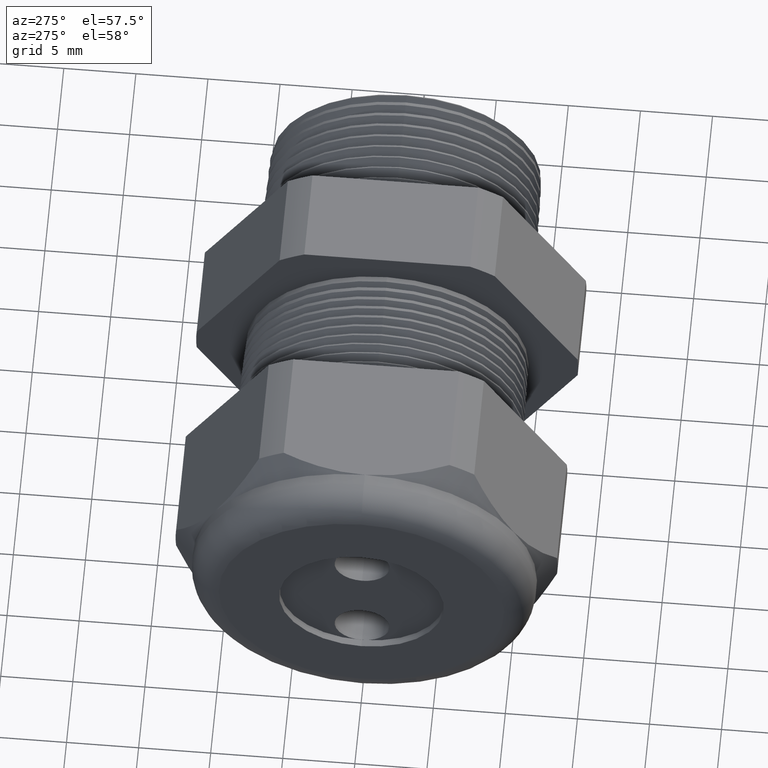
[diagram: clean part render]
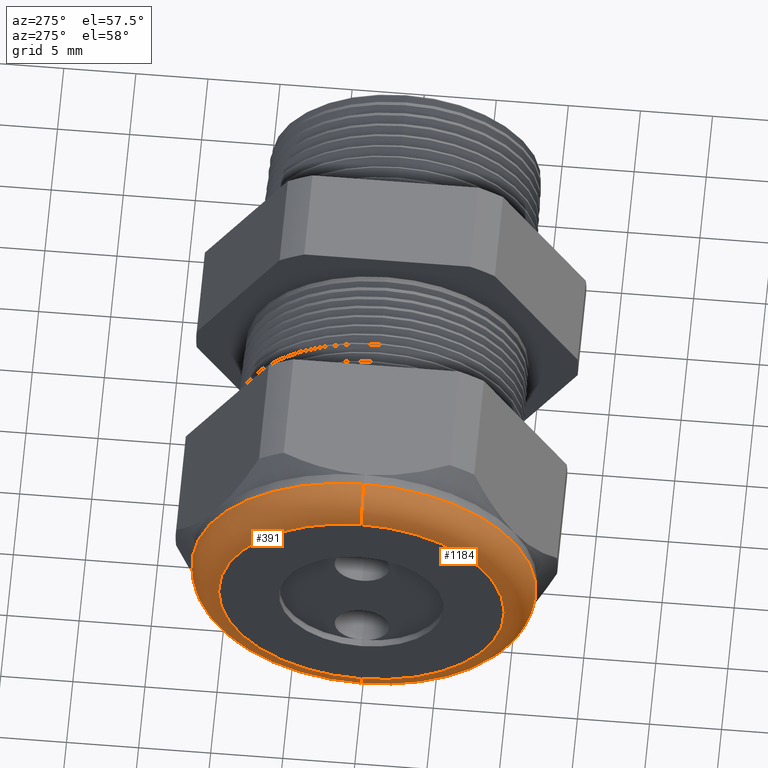
[diagram: same view with one multi-face feature highlighted, each face labeled with its STEP entity id]
A machine part, auxiliary view. The highlighted faces form ONE feature: a constant-radius fillet chain: 2 tangent blend faces with common blend radius 2.032 mm. The faces share edges in the B-rep.
Their STEP definitions:
[1] entity #1184 (Torus):
#41 = EDGE_CURVE ( 'NONE', #362, #361, #1577, .T. ) ;
#360 = EDGE_CURVE ( 'NONE', #361, #573, #2205, .T. ) ;
#361 = VERTEX_POINT ( 'NONE', #2200 ) ;
#362 = VERTEX_POINT ( 'NONE', #2199 ) ;
#410 = VERTEX_POINT ( 'NONE', #2286 ) ;
#413 = EDGE_CURVE ( 'NONE', #362, #410, #2278, .T. ) ;
#573 = VERTEX_POINT ( 'NONE', #2643 ) ;
#987 = EDGE_CURVE ( 'NONE', #573, #410, #3396, .T. ) ;
#1166 = ORIENTED_EDGE ( 'NONE', *, *, #987, .F. ) ;
#1184 = ADVANCED_FACE ( 'NONE', ( #3669 ), #3668, .T. ) ;
#1185 = EDGE_LOOP ( 'NONE', ( #1186, #1187, #1188, #1166 ) ) ;
#1186 = ORIENTED_EDGE ( 'NONE', *, *, #360, .F. ) ;
#1187 = ORIENTED_EDGE ( 'NONE', *, *, #41, .F. ) ;
#1188 = ORIENTED_EDGE ( 'NONE', *, *, #413, .T. ) ;
#1573 = DIRECTION ( 'NONE',  ( 0.0000000000000000000, 0.0000000000000000000, 1.000000000000000000 ) ) ;
#1574 = DIRECTION ( 'NONE',  ( 1.000000000000000000, 0.0000000000000000000, 0.0000000000000000000 ) ) ;
#1575 = CARTESIAN_POINT ( 'NONE',  ( -1.290000000000000300, 0.0000000000000000000, 0.0000000000000000000 ) ) ;
#1576 = AXIS2_PLACEMENT_3D ( 'NONE', #1575, #1574, #1573 ) ;
#1577 = CIRCLE ( 'NONE', #1576, 0.4699999999999999200 ) ;
#1782 = DIRECTION ( 'NONE',  ( 0.0000000000000000000, -1.000000000000000000, 0.0000000000000000000 ) ) ;
#1783 = CARTESIAN_POINT ( 'NONE',  ( -1.290000000000000300, 0.0000000000000000000, 0.3899999999999999600 ) ) ;
#2026 = DIRECTION ( 'NONE',  ( 0.0000000000000000000, 0.0000000000000000000, -1.000000000000000000 ) ) ;
#2199 = CARTESIAN_POINT ( 'NONE',  ( -1.290000000000000300, 5.755839955992558400E-017, 0.4699999999999999200 ) ) ;
#2200 = CARTESIAN_POINT ( 'NONE',  ( -1.290000000000000300, 0.0000000000000000000, -0.4699999999999999200 ) ) ;
#2201 = DIRECTION ( 'NONE',  ( 0.0000000000000000000, -1.224646799147353900E-016, 1.000000000000000000 ) ) ;
#2202 = DIRECTION ( 'NONE',  ( 0.0000000000000000000, 1.000000000000000000, 1.224646799147353200E-016 ) ) ;
#2203 = CARTESIAN_POINT ( 'NONE',  ( -1.290000000000000300, 4.776122516674676800E-017, -0.3899999999999999600 ) ) ;
#2204 = AXIS2_PLACEMENT_3D ( 'NONE', #2203, #2202, #2201 ) ;
#2205 = CIRCLE ( 'NONE', #2204, 0.07999999999999996000 ) ;
#2277 = AXIS2_PLACEMENT_3D ( 'NONE', #1783, #1782, #2026 ) ;
#2278 = CIRCLE ( 'NONE', #2277, 0.07999999999999996000 ) ;
#2286 = CARTESIAN_POINT ( 'NONE',  ( -1.370000000000000100, 0.0000000000000000000, 0.3899999999999999600 ) ) ;
#2643 = CARTESIAN_POINT ( 'NONE',  ( -1.370000000000000100, 5.265981236333617600E-017, -0.3899999999999999600 ) ) ;
#3392 = DIRECTION ( 'NONE',  ( 0.0000000000000000000, 0.0000000000000000000, 1.000000000000000000 ) ) ;
#3393 = DIRECTION ( 'NONE',  ( -1.000000000000000000, 0.0000000000000000000, 0.0000000000000000000 ) ) ;
#3394 = CARTESIAN_POINT ( 'NONE',  ( -1.370000000000000100, 0.0000000000000000000, 0.0000000000000000000 ) ) ;
#3395 = AXIS2_PLACEMENT_3D ( 'NONE', #3394, #3393, #3392 ) ;
#3396 = CIRCLE ( 'NONE', #3395, 0.3899999999999999600 ) ;
#3668 = TOROIDAL_SURFACE ( 'NONE', #3732, 0.3899999999999999600, 0.08000000000000000200 ) ;
#3669 = FACE_OUTER_BOUND ( 'NONE', #1185, .T. ) ;
#3729 = DIRECTION ( 'NONE',  ( 0.0000000000000000000, 0.0000000000000000000, 1.000000000000000000 ) ) ;
#3730 = DIRECTION ( 'NONE',  ( -1.000000000000000000, 0.0000000000000000000, 0.0000000000000000000 ) ) ;
#3731 = CARTESIAN_POINT ( 'NONE',  ( -1.290000000000000300, 0.0000000000000000000, 0.0000000000000000000 ) ) ;
#3732 = AXIS2_PLACEMENT_3D ( 'NONE', #3731, #3730, #3729 ) ;
[2] entity #391 (Torus):
#360 = EDGE_CURVE ( 'NONE', #361, #573, #2205, .T. ) ;
#361 = VERTEX_POINT ( 'NONE', #2200 ) ;
#362 = VERTEX_POINT ( 'NONE', #2199 ) ;
#364 = ORIENTED_EDGE ( 'NONE', *, *, #360, .T. ) ;
#388 = EDGE_LOOP ( 'NONE', ( #389, #364, #417, #412 ) ) ;
#389 = ORIENTED_EDGE ( 'NONE', *, *, #390, .F. ) ;
#390 = EDGE_CURVE ( 'NONE', #361, #362, #2269, .T. ) ;
#391 = ADVANCED_FACE ( 'NONE', ( #2264 ), #2263, .T. ) ;
#409 = EDGE_CURVE ( 'NONE', #410, #573, #2291, .T. ) ;
#410 = VERTEX_POINT ( 'NONE', #2286 ) ;
#412 = ORIENTED_EDGE ( 'NONE', *, *, #413, .F. ) ;
#413 = EDGE_CURVE ( 'NONE', #362, #410, #2278, .T. ) ;
#417 = ORIENTED_EDGE ( 'NONE', *, *, #409, .F. ) ;
#573 = VERTEX_POINT ( 'NONE', #2643 ) ;
#1782 = DIRECTION ( 'NONE',  ( 0.0000000000000000000, -1.000000000000000000, 0.0000000000000000000 ) ) ;
#1783 = CARTESIAN_POINT ( 'NONE',  ( -1.290000000000000300, 0.0000000000000000000, 0.3899999999999999600 ) ) ;
#2026 = DIRECTION ( 'NONE',  ( 0.0000000000000000000, 0.0000000000000000000, -1.000000000000000000 ) ) ;
#2199 = CARTESIAN_POINT ( 'NONE',  ( -1.290000000000000300, 5.755839955992558400E-017, 0.4699999999999999200 ) ) ;
#2200 = CARTESIAN_POINT ( 'NONE',  ( -1.290000000000000300, 0.0000000000000000000, -0.4699999999999999200 ) ) ;
#2201 = DIRECTION ( 'NONE',  ( 0.0000000000000000000, -1.224646799147353900E-016, 1.000000000000000000 ) ) ;
#2202 = DIRECTION ( 'NONE',  ( 0.0000000000000000000, 1.000000000000000000, 1.224646799147353200E-016 ) ) ;
#2203 = CARTESIAN_POINT ( 'NONE',  ( -1.290000000000000300, 4.776122516674676800E-017, -0.3899999999999999600 ) ) ;
#2204 = AXIS2_PLACEMENT_3D ( 'NONE', #2203, #2202, #2201 ) ;
#2205 = CIRCLE ( 'NONE', #2204, 0.07999999999999996000 ) ;
#2259 = DIRECTION ( 'NONE',  ( 0.0000000000000000000, 0.0000000000000000000, 1.000000000000000000 ) ) ;
#2260 = DIRECTION ( 'NONE',  ( -1.000000000000000000, 0.0000000000000000000, 0.0000000000000000000 ) ) ;
#2261 = CARTESIAN_POINT ( 'NONE',  ( -1.290000000000000300, 0.0000000000000000000, 0.0000000000000000000 ) ) ;
#2262 = AXIS2_PLACEMENT_3D ( 'NONE', #2261, #2260, #2259 ) ;
#2263 = TOROIDAL_SURFACE ( 'NONE', #2262, 0.3899999999999999600, 0.08000000000000000200 ) ;
#2264 = FACE_OUTER_BOUND ( 'NONE', #388, .T. ) ;
#2265 = DIRECTION ( 'NONE',  ( 0.0000000000000000000, 0.0000000000000000000, 1.000000000000000000 ) ) ;
#2266 = DIRECTION ( 'NONE',  ( 1.000000000000000000, 0.0000000000000000000, 0.0000000000000000000 ) ) ;
#2267 = CARTESIAN_POINT ( 'NONE',  ( -1.290000000000000300, 0.0000000000000000000, 0.0000000000000000000 ) ) ;
#2268 = AXIS2_PLACEMENT_3D ( 'NONE', #2267, #2266, #2265 ) ;
#2269 = CIRCLE ( 'NONE', #2268, 0.4699999999999999200 ) ;
#2277 = AXIS2_PLACEMENT_3D ( 'NONE', #1783, #1782, #2026 ) ;
#2278 = CIRCLE ( 'NONE', #2277, 0.07999999999999996000 ) ;
#2286 = CARTESIAN_POINT ( 'NONE',  ( -1.370000000000000100, 0.0000000000000000000, 0.3899999999999999600 ) ) ;
#2287 = DIRECTION ( 'NONE',  ( 0.0000000000000000000, 0.0000000000000000000, 1.000000000000000000 ) ) ;
#2288 = DIRECTION ( 'NONE',  ( -1.000000000000000000, 0.0000000000000000000, 0.0000000000000000000 ) ) ;
#2289 = CARTESIAN_POINT ( 'NONE',  ( -1.370000000000000100, 0.0000000000000000000, 0.0000000000000000000 ) ) ;
#2290 = AXIS2_PLACEMENT_3D ( 'NONE', #2289, #2288, #2287 ) ;
#2291 = CIRCLE ( 'NONE', #2290, 0.3899999999999999600 ) ;
#2643 = CARTESIAN_POINT ( 'NONE',  ( -1.370000000000000100, 5.265981236333617600E-017, -0.3899999999999999600 ) ) ;